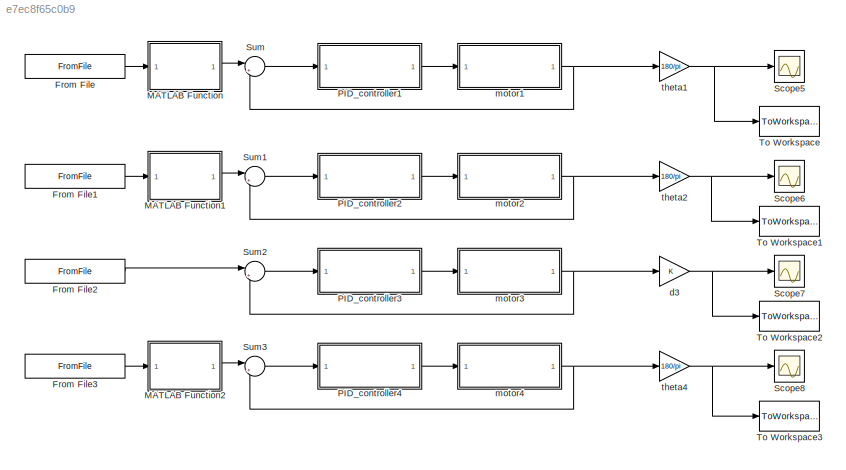
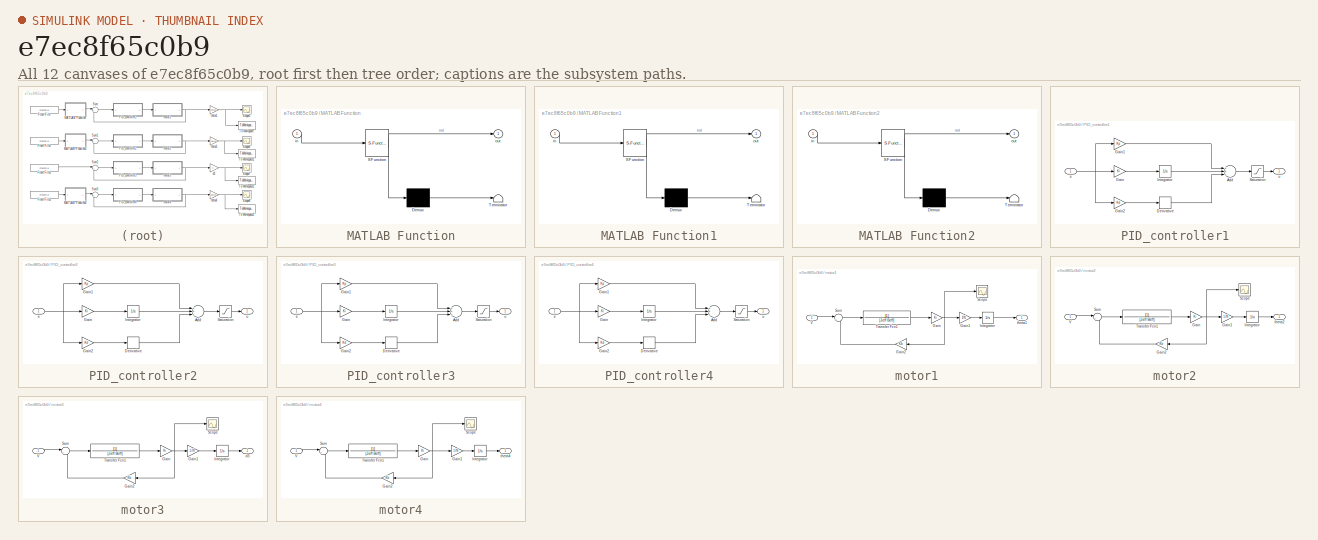
[diagram: thumbnail index - all 12 canvases of the model, root first then tree order]
MODEL slx_e7ec8f65c0b9
KIND model
CONFIG AbsTol = auto
CONFIG EnableMultiTasking = off
CONFIG FixedStep = 0.01
CONFIG MaxStep = auto
CONFIG MinStep = auto
CONFIG RelTol = 1e-3
CONFIG SampleTimeConstraint = Unconstrained
CONFIG Solver = ode5
CONFIG SolverName = ode5
CONFIG StartTime = 0.0
CONFIG StopTime = inf
BLOCK [FromFile] From File
  FileName = theta1set.mat
BLOCK [FromFile] From File1
  FileName = theta2set.mat
BLOCK [FromFile] From File2
  FileName = d3set.mat
BLOCK [FromFile] From File3
  FileName = theta4set.mat
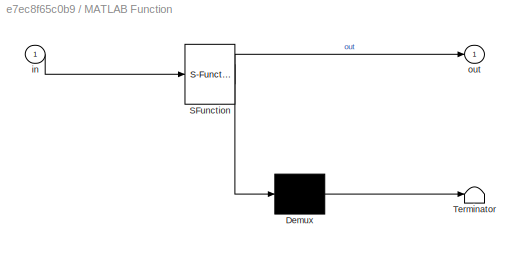
BLOCK [SubSystem] MATLAB Function
  ErrorFcn = Stateflow.Translate.translate
  PermitHierarchicalResolution = ExplicitOnly
  Ports = [1, 1]
  RequestExecContextInheritance = off
  SFBlockType = MATLAB Function
  TreatAsAtomicUnit = on
BLOCK [Demux] MATLAB Function/ Demux 
  Outputs = 1
  Ports = [1, 1]
BLOCK [S-Function] MATLAB Function/ SFunction 
  EnableBusSupport = on
  FunctionName = sf_sfun
  PortCounts = [1 2]
  Ports = [1, 2]
  SFcnIsStateOwnerBlock = off
  SFunctionDeploymentMode = off
  Tag = Stateflow S-Function PIDController 2
BLOCK [Terminator] MATLAB Function/ Terminator 
BLOCK [Inport] MATLAB Function/in
  IconDisplay = Port number
BLOCK [Outport] MATLAB Function/out
  IconDisplay = Port number
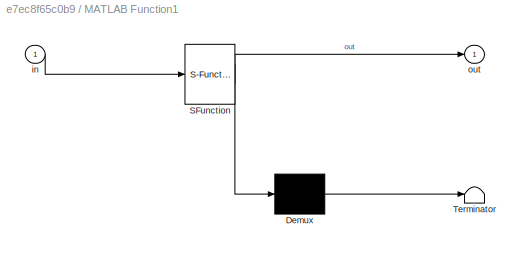
BLOCK [SubSystem] MATLAB Function1
  ErrorFcn = Stateflow.Translate.translate
  PermitHierarchicalResolution = ExplicitOnly
  Ports = [1, 1]
  RequestExecContextInheritance = off
  SFBlockType = MATLAB Function
  TreatAsAtomicUnit = on
BLOCK [Demux] MATLAB Function1/ Demux 
  Outputs = 1
  Ports = [1, 1]
BLOCK [S-Function] MATLAB Function1/ SFunction 
  EnableBusSupport = on
  FunctionName = sf_sfun
  PortCounts = [1 2]
  Ports = [1, 2]
  SFcnIsStateOwnerBlock = off
  SFunctionDeploymentMode = off
  Tag = Stateflow S-Function PIDController 1
BLOCK [Terminator] MATLAB Function1/ Terminator 
BLOCK [Inport] MATLAB Function1/in
  IconDisplay = Port number
BLOCK [Outport] MATLAB Function1/out
  IconDisplay = Port number
BLOCK [SubSystem] MATLAB Function2
  ErrorFcn = Stateflow.Translate.translate
  PermitHierarchicalResolution = ExplicitOnly
  Ports = [1, 1]
  RequestExecContextInheritance = off
  SFBlockType = MATLAB Function
  TreatAsAtomicUnit = on
BLOCK [Demux] MATLAB Function2/ Demux 
  Outputs = 1
  Ports = [1, 1]
BLOCK [S-Function] MATLAB Function2/ SFunction 
  EnableBusSupport = on
  FunctionName = sf_sfun
  PortCounts = [1 2]
  Ports = [1, 2]
  SFcnIsStateOwnerBlock = off
  SFunctionDeploymentMode = off
  Tag = Stateflow S-Function PIDController 3
BLOCK [Terminator] MATLAB Function2/ Terminator 
BLOCK [Inport] MATLAB Function2/in
  IconDisplay = Port number
BLOCK [Outport] MATLAB Function2/out
  IconDisplay = Port number
BLOCK [SubSystem] PID_controller1
  Ports = [1, 1]
  RequestExecContextInheritance = off
BLOCK [Sum] PID_controller1/Add
  InputSameDT = off
  Inputs = +++
  OutDataTypeStr = Inherit: Inherit via internal rule
  Ports = [3, 1]
  SaturateOnIntegerOverflow = off
BLOCK [Derivative] PID_controller1/Derivative
BLOCK [Gain] PID_controller1/Gain
  Gain = Ki
  OutDataTypeStr = Inherit: Inherit via internal rule
  ParamDataTypeStr = Inherit: Inherit via internal rule
  SaturateOnIntegerOverflow = off
BLOCK [Gain] PID_controller1/Gain1
  Gain = Kp
  OutDataTypeStr = Inherit: Inherit via internal rule
  ParamDataTypeStr = Inherit: Inherit via internal rule
  SaturateOnIntegerOverflow = off
BLOCK [Gain] PID_controller1/Gain2
  Gain = Kd
  OutDataTypeStr = Inherit: Inherit via internal rule
  ParamDataTypeStr = Inherit: Inherit via internal rule
  SaturateOnIntegerOverflow = off
BLOCK [Integrator] PID_controller1/Integrator
  Ports = [1, 1]
BLOCK [Saturate] PID_controller1/Saturation
  InputPortMap = u0
  LowerLimit = -300
  Ports = [1, 1]
  UpperLimit = 300
BLOCK [Inport] PID_controller1/e
  IconDisplay = Port number
BLOCK [Outport] PID_controller1/u
  IconDisplay = Port number
BLOCK [SubSystem] PID_controller2
  Ports = [1, 1]
  RequestExecContextInheritance = off
BLOCK [Sum] PID_controller2/Add
  InputSameDT = off
  Inputs = +++
  OutDataTypeStr = Inherit: Inherit via internal rule
  Ports = [3, 1]
  SaturateOnIntegerOverflow = off
BLOCK [Derivative] PID_controller2/Derivative
BLOCK [Gain] PID_controller2/Gain
  Gain = Ki
  OutDataTypeStr = Inherit: Inherit via internal rule
  ParamDataTypeStr = Inherit: Inherit via internal rule
  SaturateOnIntegerOverflow = off
BLOCK [Gain] PID_controller2/Gain1
  Gain = Kp
  OutDataTypeStr = Inherit: Inherit via internal rule
  ParamDataTypeStr = Inherit: Inherit via internal rule
  SaturateOnIntegerOverflow = off
BLOCK [Gain] PID_controller2/Gain2
  Gain = Kd
  OutDataTypeStr = Inherit: Inherit via internal rule
  ParamDataTypeStr = Inherit: Inherit via internal rule
  SaturateOnIntegerOverflow = off
BLOCK [Integrator] PID_controller2/Integrator
  Ports = [1, 1]
BLOCK [Saturate] PID_controller2/Saturation
  InputPortMap = u0
  LowerLimit = -300
  Ports = [1, 1]
  UpperLimit = 300
BLOCK [Inport] PID_controller2/e
  IconDisplay = Port number
BLOCK [Outport] PID_controller2/u
  IconDisplay = Port number
BLOCK [SubSystem] PID_controller3
  Ports = [1, 1]
  RequestExecContextInheritance = off
BLOCK [Sum] PID_controller3/Add
  InputSameDT = off
  Inputs = +++
  OutDataTypeStr = Inherit: Inherit via internal rule
  Ports = [3, 1]
  SaturateOnIntegerOverflow = off
BLOCK [Derivative] PID_controller3/Derivative
BLOCK [Gain] PID_controller3/Gain
  Gain = Ki
  OutDataTypeStr = Inherit: Inherit via internal rule
  ParamDataTypeStr = Inherit: Inherit via internal rule
  SaturateOnIntegerOverflow = off
BLOCK [Gain] PID_controller3/Gain1
  Gain = Kp
  OutDataTypeStr = Inherit: Inherit via internal rule
  ParamDataTypeStr = Inherit: Inherit via internal rule
  SaturateOnIntegerOverflow = off
BLOCK [Gain] PID_controller3/Gain2
  Gain = Kd
  OutDataTypeStr = Inherit: Inherit via internal rule
  ParamDataTypeStr = Inherit: Inherit via internal rule
  SaturateOnIntegerOverflow = off
BLOCK [Integrator] PID_controller3/Integrator
  Ports = [1, 1]
BLOCK [Saturate] PID_controller3/Saturation
  InputPortMap = u0
  LowerLimit = -300
  Ports = [1, 1]
  UpperLimit = 300
BLOCK [Inport] PID_controller3/e
  IconDisplay = Port number
BLOCK [Outport] PID_controller3/u
  IconDisplay = Port number
BLOCK [SubSystem] PID_controller4
  Ports = [1, 1]
  RequestExecContextInheritance = off
BLOCK [Sum] PID_controller4/Add
  InputSameDT = off
  Inputs = +++
  OutDataTypeStr = Inherit: Inherit via internal rule
  Ports = [3, 1]
  SaturateOnIntegerOverflow = off
BLOCK [Derivative] PID_controller4/Derivative
BLOCK [Gain] PID_controller4/Gain
  Gain = Ki
  OutDataTypeStr = Inherit: Inherit via internal rule
  ParamDataTypeStr = Inherit: Inherit via internal rule
  SaturateOnIntegerOverflow = off
BLOCK [Gain] PID_controller4/Gain1
  Gain = Kp
  OutDataTypeStr = Inherit: Inherit via internal rule
  ParamDataTypeStr = Inherit: Inherit via internal rule
  SaturateOnIntegerOverflow = off
BLOCK [Gain] PID_controller4/Gain2
  Gain = Kd
  OutDataTypeStr = Inherit: Inherit via internal rule
  ParamDataTypeStr = Inherit: Inherit via internal rule
  SaturateOnIntegerOverflow = off
BLOCK [Integrator] PID_controller4/Integrator
  Ports = [1, 1]
BLOCK [Saturate] PID_controller4/Saturation
  InputPortMap = u0
  LowerLimit = -300
  Ports = [1, 1]
  UpperLimit = 300
BLOCK [Inport] PID_controller4/e
  IconDisplay = Port number
BLOCK [Outport] PID_controller4/u
  IconDisplay = Port number
BLOCK [Scope] Scope5
  Floating = off
  NumInputPorts = 1
  Ports = [1]
  ScopeSpecificationString = Simulink.scopes.TimeScopeBlockCfg('CurrentConfiguration', extmgr.ConfigurationSet(extmgr.Configuration('Core','General UI',true),extmgr.Configuration('Core','Source UI',true),extmgr.Configuration('Sources','WiredSimulink',true,'DataLoggingVariableName','ScopeData1'),extmgr.Configuration('Visuals','Time Domain',true,'SerializedDisplays',{struct('MinYLimReal','-2.24181','MaxYLimReal','20.17625','YLa...<+1449ch>
BLOCK [Scope] Scope6
  Floating = off
  NumInputPorts = 1
  Ports = [1]
  ScopeSpecificationString = Simulink.scopes.TimeScopeBlockCfg('CurrentConfiguration', extmgr.ConfigurationSet(extmgr.Configuration('Core','General UI',true),extmgr.Configuration('Core','Source UI',true),extmgr.Configuration('Sources','WiredSimulink',true,'DataLoggingVariableName','ScopeData2'),extmgr.Configuration('Visuals','Time Domain',true,'SerializedDisplays',{struct('MinYLimReal','-126.99233','MaxYLimReal','-89.78776','...<+1459ch>
BLOCK [Scope] Scope7
  Floating = off
  NumInputPorts = 1
  Ports = [1]
  ScopeSpecificationString = Simulink.scopes.TimeScopeBlockCfg('CurrentConfiguration', extmgr.ConfigurationSet(extmgr.Configuration('Core','General UI',true),extmgr.Configuration('Core','Source UI',true),extmgr.Configuration('Sources','WiredSimulink',true,'DataLoggingVariableName','ScopeData3'),extmgr.Configuration('Visuals','Time Domain',true,'SerializedDisplays',{struct('MinYLimReal','114.5915590261645','MaxYLimReal','114.5...<+1532ch>
BLOCK [Scope] Scope8
  Floating = off
  NumInputPorts = 1
  Ports = [1]
  ScopeSpecificationString = Simulink.scopes.TimeScopeBlockCfg('CurrentConfiguration', extmgr.ConfigurationSet(extmgr.Configuration('Core','General UI',true),extmgr.Configuration('Core','Source UI',true),extmgr.Configuration('Sources','WiredSimulink',true,'DataLoggingVariableName','ScopeData4'),extmgr.Configuration('Visuals','Time Domain',true,'SerializedDisplays',{struct('MinYLimReal','-107.83903','MaxYLimReal','-88.01812','...<+1459ch>
BLOCK [Sum] Sum
  IconShape = round
  InputSameDT = off
  Inputs = |+-
  OutDataTypeStr = Inherit: Inherit via internal rule
  Ports = [2, 1]
  SaturateOnIntegerOverflow = off
BLOCK [Sum] Sum1
  IconShape = round
  InputSameDT = off
  Inputs = |+-
  OutDataTypeStr = Inherit: Inherit via internal rule
  Ports = [2, 1]
  SaturateOnIntegerOverflow = off
BLOCK [Sum] Sum2
  IconShape = round
  InputSameDT = off
  Inputs = |+-
  OutDataTypeStr = Inherit: Inherit via internal rule
  Ports = [2, 1]
  SaturateOnIntegerOverflow = off
BLOCK [Sum] Sum3
  IconShape = round
  InputSameDT = off
  Inputs = |+-
  OutDataTypeStr = Inherit: Inherit via internal rule
  Ports = [2, 1]
  SaturateOnIntegerOverflow = off
BLOCK [ToWorkspace] To Workspace
  FixptAsFi = on
  MaxDataPoints = inf
  Ports = [1]
  SampleTime = -1
  VariableName = theta1out
BLOCK [ToWorkspace] To Workspace1
  FixptAsFi = on
  MaxDataPoints = inf
  Ports = [1]
  SampleTime = -1
  VariableName = theta2out
BLOCK [ToWorkspace] To Workspace2
  FixptAsFi = on
  MaxDataPoints = inf
  Ports = [1]
  SampleTime = -1
  VariableName = d3out
BLOCK [ToWorkspace] To Workspace3
  FixptAsFi = on
  MaxDataPoints = inf
  Ports = [1]
  SampleTime = -1
  VariableName = theta4out
BLOCK [Gain] d3
  OutDataTypeStr = Inherit: Inherit via internal rule
  ParamDataTypeStr = Inherit: Inherit via internal rule
  SaturateOnIntegerOverflow = off
BLOCK [SubSystem] motor1
  Ports = [1, 1]
  RequestExecContextInheritance = off
BLOCK [Gain] motor1/Gain
  Gain = Ki
  OutDataTypeStr = Inherit: Inherit via internal rule
  ParamDataTypeStr = Inherit: Inherit via internal rule
  SaturateOnIntegerOverflow = off
BLOCK [Gain] motor1/Gain1
  Gain = 1/N
  OutDataTypeStr = Inherit: Inherit via internal rule
  ParamDataTypeStr = Inherit: Inherit via internal rule
  SaturateOnIntegerOverflow = off
BLOCK [Gain] motor1/Gain2
  Gain = Kb
  OutDataTypeStr = Inherit: Inherit via internal rule
  ParamDataTypeStr = Inherit: Inherit via internal rule
  SaturateOnIntegerOverflow = off
BLOCK [Integrator] motor1/Integrator
  Ports = [1, 1]
BLOCK [Scope] motor1/Scope
  Floating = off
  NumInputPorts = 1
  Ports = [1]
  ScopeSpecificationString = Simulink.scopes.TimeScopeBlockCfg('CurrentConfiguration', extmgr.ConfigurationSet(extmgr.Configuration('Core','General UI',true),extmgr.Configuration('Core','Source UI',true),extmgr.Configuration('Sources','WiredSimulink',true,'DataLoggingVariableName','ScopeData2'),extmgr.Configuration('Visuals','Time Domain',true,'SerializedDisplays',{struct('MinYLimReal','-142.39063','MaxYLimReal','35.76049','Y...<+1375ch>
BLOCK [Sum] motor1/Sum
  IconShape = round
  InputSameDT = off
  Inputs = |+-
  OutDataTypeStr = Inherit: Inherit via internal rule
  Ports = [2, 1]
  SaturateOnIntegerOverflow = off
BLOCK [TransferFcn] motor1/Transfer Fcn1
  Denominator = [Jeff Beff]
BLOCK [Inport] motor1/V
  IconDisplay = Port number
BLOCK [Outport] motor1/theta1
  IconDisplay = Port number
BLOCK [SubSystem] motor2
  Ports = [1, 1]
  RequestExecContextInheritance = off
BLOCK [Gain] motor2/Gain
  Gain = Ki
  OutDataTypeStr = Inherit: Inherit via internal rule
  ParamDataTypeStr = Inherit: Inherit via internal rule
  SaturateOnIntegerOverflow = off
BLOCK [Gain] motor2/Gain1
  Gain = 1/N
  OutDataTypeStr = Inherit: Inherit via internal rule
  ParamDataTypeStr = Inherit: Inherit via internal rule
  SaturateOnIntegerOverflow = off
BLOCK [Gain] motor2/Gain2
  Gain = Kb
  OutDataTypeStr = Inherit: Inherit via internal rule
  ParamDataTypeStr = Inherit: Inherit via internal rule
  SaturateOnIntegerOverflow = off
BLOCK [Integrator] motor2/Integrator
  InitialCondition = 1.57
  Ports = [1, 1]
BLOCK [Scope] motor2/Scope
  Floating = off
  NumInputPorts = 1
  Ports = [1]
  ScopeSpecificationString = Simulink.scopes.TimeScopeBlockCfg('CurrentConfiguration', extmgr.ConfigurationSet(extmgr.Configuration('Core','General UI',true),extmgr.Configuration('Core','Source UI',true),extmgr.Configuration('Sources','WiredSimulink',true,'DataLoggingVariableName','ScopeData2'),extmgr.Configuration('Visuals','Time Domain',true,'SerializedDisplays',{struct('MinYLimReal','-5.44626','MaxYLimReal','1.36751','YLab...<+1363ch>
BLOCK [Sum] motor2/Sum
  IconShape = round
  InputSameDT = off
  Inputs = |+-
  OutDataTypeStr = Inherit: Inherit via internal rule
  Ports = [2, 1]
  SaturateOnIntegerOverflow = off
BLOCK [TransferFcn] motor2/Transfer Fcn1
  Denominator = [Jeff Beff]
BLOCK [Inport] motor2/V
  IconDisplay = Port number
BLOCK [Outport] motor2/theta2
  IconDisplay = Port number
BLOCK [SubSystem] motor3
  Ports = [1, 1]
  RequestExecContextInheritance = off
BLOCK [Gain] motor3/Gain
  Gain = Ki
  OutDataTypeStr = Inherit: Inherit via internal rule
  ParamDataTypeStr = Inherit: Inherit via internal rule
  SaturateOnIntegerOverflow = off
BLOCK [Gain] motor3/Gain1
  Gain = 1/N
  OutDataTypeStr = Inherit: Inherit via internal rule
  ParamDataTypeStr = Inherit: Inherit via internal rule
  SaturateOnIntegerOverflow = off
BLOCK [Gain] motor3/Gain2
  Gain = Kb
  OutDataTypeStr = Inherit: Inherit via internal rule
  ParamDataTypeStr = Inherit: Inherit via internal rule
  SaturateOnIntegerOverflow = off
BLOCK [Integrator] motor3/Integrator
  Ports = [1, 1]
BLOCK [Scope] motor3/Scope
  Floating = off
  NumInputPorts = 1
  Ports = [1]
  ScopeSpecificationString = Simulink.scopes.TimeScopeBlockCfg('CurrentConfiguration', extmgr.ConfigurationSet(extmgr.Configuration('Core','General UI',true),extmgr.Configuration('Core','Source UI',true),extmgr.Configuration('Sources','WiredSimulink',true,'DataLoggingVariableName','ScopeData2'),extmgr.Configuration('Visuals','Time Domain',true,'SerializedDisplays',{struct('MinYLimReal','-1.64047','MaxYLimReal','0.33812','YLab...<+1369ch>
BLOCK [Sum] motor3/Sum
  IconShape = round
  InputSameDT = off
  Inputs = |+-
  OutDataTypeStr = Inherit: Inherit via internal rule
  Ports = [2, 1]
  SaturateOnIntegerOverflow = off
BLOCK [TransferFcn] motor3/Transfer Fcn1
  Denominator = [Jeff Beff]
BLOCK [Inport] motor3/V
  IconDisplay = Port number
BLOCK [Outport] motor3/d3
  IconDisplay = Port number
BLOCK [SubSystem] motor4
  Ports = [1, 1]
  RequestExecContextInheritance = off
BLOCK [Gain] motor4/Gain
  Gain = Ki
  OutDataTypeStr = Inherit: Inherit via internal rule
  ParamDataTypeStr = Inherit: Inherit via internal rule
  SaturateOnIntegerOverflow = off
BLOCK [Gain] motor4/Gain1
  Gain = 1/N
  OutDataTypeStr = Inherit: Inherit via internal rule
  ParamDataTypeStr = Inherit: Inherit via internal rule
  SaturateOnIntegerOverflow = off
BLOCK [Gain] motor4/Gain2
  Gain = Kb
  OutDataTypeStr = Inherit: Inherit via internal rule
  ParamDataTypeStr = Inherit: Inherit via internal rule
  SaturateOnIntegerOverflow = off
BLOCK [Integrator] motor4/Integrator
  InitialCondition = -1.57
  Ports = [1, 1]
BLOCK [Scope] motor4/Scope
  Floating = off
  NumInputPorts = 1
  Ports = [1]
  ScopeSpecificationString = Simulink.scopes.TimeScopeBlockCfg('CurrentConfiguration', extmgr.ConfigurationSet(extmgr.Configuration('Core','General UI',true),extmgr.Configuration('Core','Source UI',true),extmgr.Configuration('Sources','WiredSimulink',true,'DataLoggingVariableName','ScopeData2'),extmgr.Configuration('Visuals','Time Domain',true,'SerializedDisplays',{struct('MinYLimReal','-1.64047','MaxYLimReal','0.33812','YLab...<+1369ch>
BLOCK [Sum] motor4/Sum
  IconShape = round
  InputSameDT = off
  Inputs = |+-
  OutDataTypeStr = Inherit: Inherit via internal rule
  Ports = [2, 1]
  SaturateOnIntegerOverflow = off
BLOCK [TransferFcn] motor4/Transfer Fcn1
  Denominator = [Jeff Beff]
BLOCK [Inport] motor4/V
  IconDisplay = Port number
BLOCK [Outport] motor4/theta4
  IconDisplay = Port number
BLOCK [Gain] theta1
  Gain = 180/pi
  OutDataTypeStr = Inherit: Inherit via internal rule
  ParamDataTypeStr = Inherit: Inherit via internal rule
  SaturateOnIntegerOverflow = off
BLOCK [Gain] theta2
  Gain = 180/pi
  OutDataTypeStr = Inherit: Inherit via internal rule
  ParamDataTypeStr = Inherit: Inherit via internal rule
  SaturateOnIntegerOverflow = off
BLOCK [Gain] theta4
  Gain = 180/pi
  OutDataTypeStr = Inherit: Inherit via internal rule
  ParamDataTypeStr = Inherit: Inherit via internal rule
  SaturateOnIntegerOverflow = off
LINE From File1:1 -> MATLAB Function1:1
LINE From File2:1 -> Sum2:1
LINE From File3:1 -> MATLAB Function2:1
LINE From File:1 -> MATLAB Function:1
LINE MATLAB Function1:1 -> Sum1:1
LINE MATLAB Function2:1 -> Sum3:1
LINE MATLAB Function:1 -> Sum:1
LINE PID_controller1/Add:1 -> PID_controller1/Saturation:1
LINE PID_controller1/Derivative:1 -> PID_controller1/Add:3
LINE PID_controller1/Gain1:1 -> PID_controller1/Add:1
LINE PID_controller1/Gain2:1 -> PID_controller1/Derivative:1
LINE PID_controller1/Gain:1 -> PID_controller1/Integrator:1
LINE PID_controller1/Integrator:1 -> PID_controller1/Add:2
LINE PID_controller1/Saturation:1 -> PID_controller1/u:1
NET PID_controller1/e:1 -> PID_controller1/Gain1:1, PID_controller1/Gain2:1, PID_controller1/Gain:1
LINE PID_controller1:1 -> motor1:1
LINE PID_controller2/Add:1 -> PID_controller2/Saturation:1
LINE PID_controller2/Derivative:1 -> PID_controller2/Add:3
LINE PID_controller2/Gain1:1 -> PID_controller2/Add:1
LINE PID_controller2/Gain2:1 -> PID_controller2/Derivative:1
LINE PID_controller2/Gain:1 -> PID_controller2/Integrator:1
LINE PID_controller2/Integrator:1 -> PID_controller2/Add:2
LINE PID_controller2/Saturation:1 -> PID_controller2/u:1
NET PID_controller2/e:1 -> PID_controller2/Gain1:1, PID_controller2/Gain2:1, PID_controller2/Gain:1
LINE PID_controller2:1 -> motor2:1
LINE PID_controller3/Add:1 -> PID_controller3/Saturation:1
LINE PID_controller3/Derivative:1 -> PID_controller3/Add:3
LINE PID_controller3/Gain1:1 -> PID_controller3/Add:1
LINE PID_controller3/Gain2:1 -> PID_controller3/Derivative:1
LINE PID_controller3/Gain:1 -> PID_controller3/Integrator:1
LINE PID_controller3/Integrator:1 -> PID_controller3/Add:2
LINE PID_controller3/Saturation:1 -> PID_controller3/u:1
NET PID_controller3/e:1 -> PID_controller3/Gain1:1, PID_controller3/Gain2:1, PID_controller3/Gain:1
LINE PID_controller3:1 -> motor3:1
LINE PID_controller4/Add:1 -> PID_controller4/Saturation:1
LINE PID_controller4/Derivative:1 -> PID_controller4/Add:3
LINE PID_controller4/Gain1:1 -> PID_controller4/Add:1
LINE PID_controller4/Gain2:1 -> PID_controller4/Derivative:1
LINE PID_controller4/Gain:1 -> PID_controller4/Integrator:1
LINE PID_controller4/Integrator:1 -> PID_controller4/Add:2
LINE PID_controller4/Saturation:1 -> PID_controller4/u:1
NET PID_controller4/e:1 -> PID_controller4/Gain1:1, PID_controller4/Gain2:1, PID_controller4/Gain:1
LINE PID_controller4:1 -> motor4:1
LINE Sum1:1 -> PID_controller2:1
LINE Sum2:1 -> PID_controller3:1
LINE Sum3:1 -> PID_controller4:1
LINE Sum:1 -> PID_controller1:1
NET d3:1 -> Scope7:1, To Workspace2:1
LINE motor1/Gain1:1 -> motor1/Integrator:1
LINE motor1/Gain2:1 -> motor1/Sum:2
NET motor1/Gain:1 -> motor1/Gain1:1, motor1/Gain2:1, motor1/Scope:1
LINE motor1/Integrator:1 -> motor1/theta1:1
LINE motor1/Sum:1 -> motor1/Transfer Fcn1:1
LINE motor1/Transfer Fcn1:1 -> motor1/Gain:1
LINE motor1/V:1 -> motor1/Sum:1
NET motor1:1 -> Sum:2, theta1:1
LINE motor2/Gain1:1 -> motor2/Integrator:1
LINE motor2/Gain2:1 -> motor2/Sum:2
NET motor2/Gain:1 -> motor2/Gain1:1, motor2/Gain2:1, motor2/Scope:1
LINE motor2/Integrator:1 -> motor2/theta2:1
LINE motor2/Sum:1 -> motor2/Transfer Fcn1:1
LINE motor2/Transfer Fcn1:1 -> motor2/Gain:1
LINE motor2/V:1 -> motor2/Sum:1
NET motor2:1 -> Sum1:2, theta2:1
LINE motor3/Gain1:1 -> motor3/Integrator:1
LINE motor3/Gain2:1 -> motor3/Sum:2
NET motor3/Gain:1 -> motor3/Gain1:1, motor3/Gain2:1, motor3/Scope:1
LINE motor3/Integrator:1 -> motor3/d3:1
LINE motor3/Sum:1 -> motor3/Transfer Fcn1:1
LINE motor3/Transfer Fcn1:1 -> motor3/Gain:1
LINE motor3/V:1 -> motor3/Sum:1
NET motor3:1 -> Sum2:2, d3:1
LINE motor4/Gain1:1 -> motor4/Integrator:1
LINE motor4/Gain2:1 -> motor4/Sum:2
NET motor4/Gain:1 -> motor4/Gain1:1, motor4/Gain2:1, motor4/Scope:1
LINE motor4/Integrator:1 -> motor4/theta4:1
LINE motor4/Sum:1 -> motor4/Transfer Fcn1:1
LINE motor4/Transfer Fcn1:1 -> motor4/Gain:1
LINE motor4/V:1 -> motor4/Sum:1
NET motor4:1 -> Sum3:2, theta4:1
NET theta1:1 -> Scope5:1, To Workspace:1
NET theta2:1 -> Scope6:1, To Workspace1:1
NET theta4:1 -> Scope8:1, To Workspace3:1
note: NET lines group one-source signal fan-out (src -> all destinations, sorted); 1:1 wires keep LINE
CHART MATLAB Function1 states=1 transitions=1
  STATE_LABEL 'eML_blk_kernel()'
  STATE_LABEL 'SCRIPT:\nfunction out = HandleInput(in)\n\nout = in\npersistent pre\nif isempty(pre)\n    pre = 0;\nend\n\nwhile (out - pre > 1.5*pi)\n    out = out - 2*pi;\nend\n\nwhile (out - pre < -1.5*pi)\n    out = out + 2*pi;\nend'
CHART MATLAB Function states=1 transitions=1
  STATE_LABEL 'eML_blk_kernel()'
  STATE_LABEL 'SCRIPT:\nfunction out = HandleInput(in)\n\nout = in\npersistent pre\nif isempty(pre)\n    pre = 0;\nend\n\nwhile (out - pre > 1.5*pi)\n    out = out - 2*pi;\nend\n\nwhile (out - pre < -1.5*pi)\n    out = out + 2*pi;\nend'
CHART MATLAB Function2 states=1 transitions=1
  STATE_LABEL 'eML_blk_kernel()'
  STATE_LABEL 'SCRIPT:\nfunction out = HandleInput(in)\n\nout = in;\npersistent pre\nif isempty(pre)\n    pre = 0;\nend\n\nwhile (out - pre > 1.5*pi)\n    out = out - 2*pi;\nend\n\nwhile (out - pre < -1.5*pi)\n    out = out + 2*pi;\nend'
